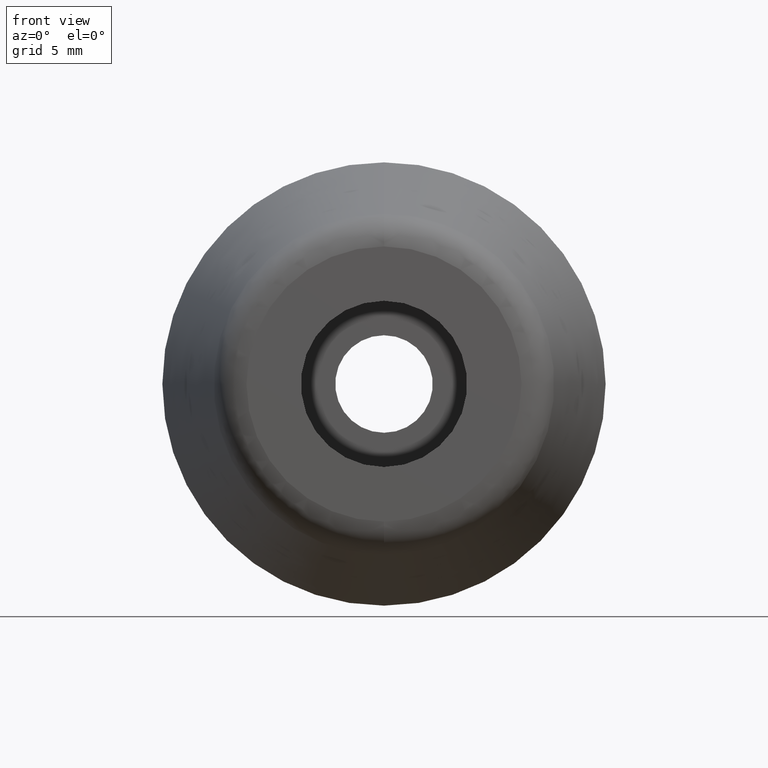
[diagram: clean part render]
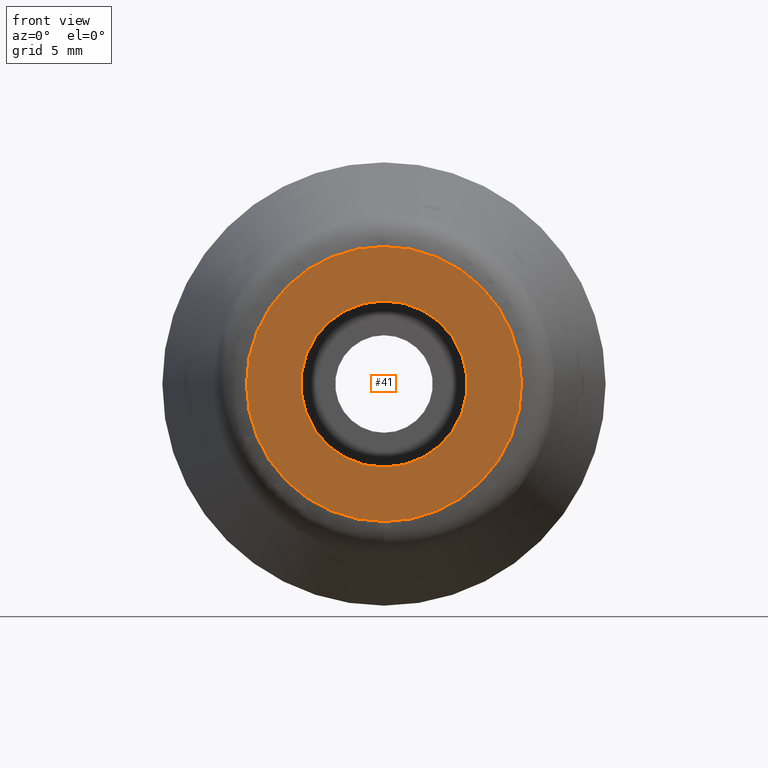
[diagram: same view with one face highlighted and labeled with its STEP entity id]
A machine part, front view. The second image highlights one B-rep face of the part: STEP entity #41.
In plain terms, the highlighted planar face has unit normal (0, 1, 0).
Its self-contained STEP definition (entity closure, byte-faithful):
#41=ADVANCED_FACE('',(#63,#64),#62,.F.);
#62=PLANE('',#173);
#63=FACE_OUTER_BOUND('',#174,.T.);
#64=FACE_BOUND('',#175,.T.);
#170=CARTESIAN_POINT('',(-1.28957181124E+01,-1.70000000000E+01,-8.06579185053E+00));
#171=DIRECTION('',(0.00000000000E+00,1.00000000000E+00,0.00000000000E+00));
#172=DIRECTION('',(0.00000000000E+00,-0.00000000000E+00,1.00000000000E+00));
#173=AXIS2_PLACEMENT_3D('',#170,#171,#172);
#174=EDGE_LOOP('',(#280,#281));
#175=EDGE_LOOP('',(#282,#283));
#280=ORIENTED_EDGE('',*,*,#324,.T.);
#281=ORIENTED_EDGE('',*,*,#325,.T.);
#282=ORIENTED_EDGE('',*,*,#326,.F.);
#283=ORIENTED_EDGE('',*,*,#327,.F.);
#324=EDGE_CURVE('',#370,#371,#372,.T.);
#325=EDGE_CURVE('',#371,#370,#378,.T.);
#326=EDGE_CURVE('',#384,#385,#386,.T.);
#327=EDGE_CURVE('',#385,#384,#392,.T.);
#370=VERTEX_POINT('',#508);
#371=VERTEX_POINT('',#509);
#372=CIRCLE('',#513,6.20445526964E+00);
#378=CIRCLE('',#517,6.20445526964E+00);
#384=VERTEX_POINT('',#518);
#385=VERTEX_POINT('',#519);
#386=CIRCLE('',#523,3.75000000000E+00);
#392=CIRCLE('',#527,3.75000000000E+00);
#508=CARTESIAN_POINT('',(1.06581410364E-14,-1.70000000000E+01,-6.20445526964E+00));
#509=CARTESIAN_POINT('',(1.03620815632E-14,-1.70000000000E+01,6.20445526964E+00));
#510=CARTESIAN_POINT('',(1.06581410364E-14,-1.70000000000E+01,0.00000000000E+00));
#511=DIRECTION('',(0.00000000000E+00,-1.00000000000E+00,-0.00000000000E+00));
#512=DIRECTION('',(-1.22460635382E-16,0.00000000000E+00,-1.00000000000E+00));
#513=AXIS2_PLACEMENT_3D('',#510,#511,#512);
#514=CARTESIAN_POINT('',(1.06581410364E-14,-1.70000000000E+01,0.00000000000E+00));
#515=DIRECTION('',(0.00000000000E+00,-1.00000000000E+00,-0.00000000000E+00));
#516=DIRECTION('',(-1.22460635382E-16,0.00000000000E+00,-1.00000000000E+00));
#517=AXIS2_PLACEMENT_3D('',#514,#515,#516);
#518=CARTESIAN_POINT('',(1.11022302463E-14,-1.70000000000E+01,3.75000000000E+00));
#519=CARTESIAN_POINT('',(1.06581410364E-14,-1.70000000000E+01,-3.75000000000E+00));
#520=CARTESIAN_POINT('',(1.06581410364E-14,-1.70000000000E+01,0.00000000000E+00));
#521=DIRECTION('',(0.00000000000E+00,-1.00000000000E+00,-0.00000000000E+00));
#522=DIRECTION('',(-1.22460635382E-16,0.00000000000E+00,-1.00000000000E+00));
#523=AXIS2_PLACEMENT_3D('',#520,#521,#522);
#524=CARTESIAN_POINT('',(1.06581410364E-14,-1.70000000000E+01,0.00000000000E+00));
#525=DIRECTION('',(0.00000000000E+00,-1.00000000000E+00,-0.00000000000E+00));
#526=DIRECTION('',(-1.22460635382E-16,0.00000000000E+00,-1.00000000000E+00));
#527=AXIS2_PLACEMENT_3D('',#524,#525,#526);